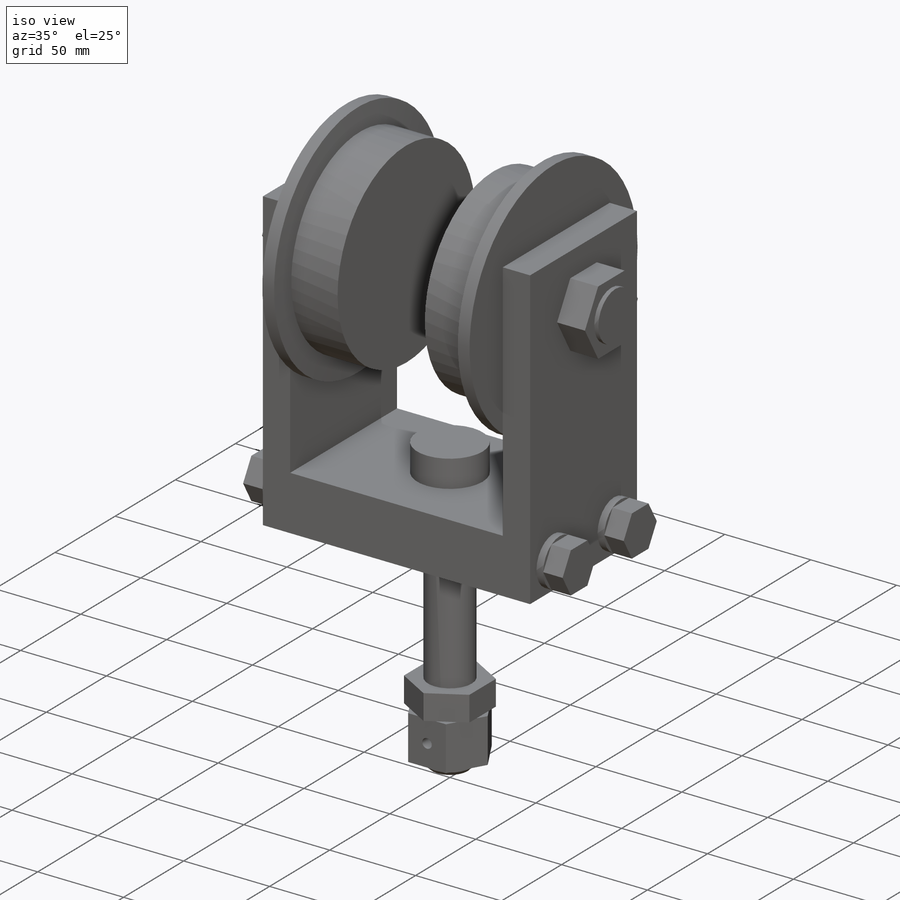
[diagram: iso view]
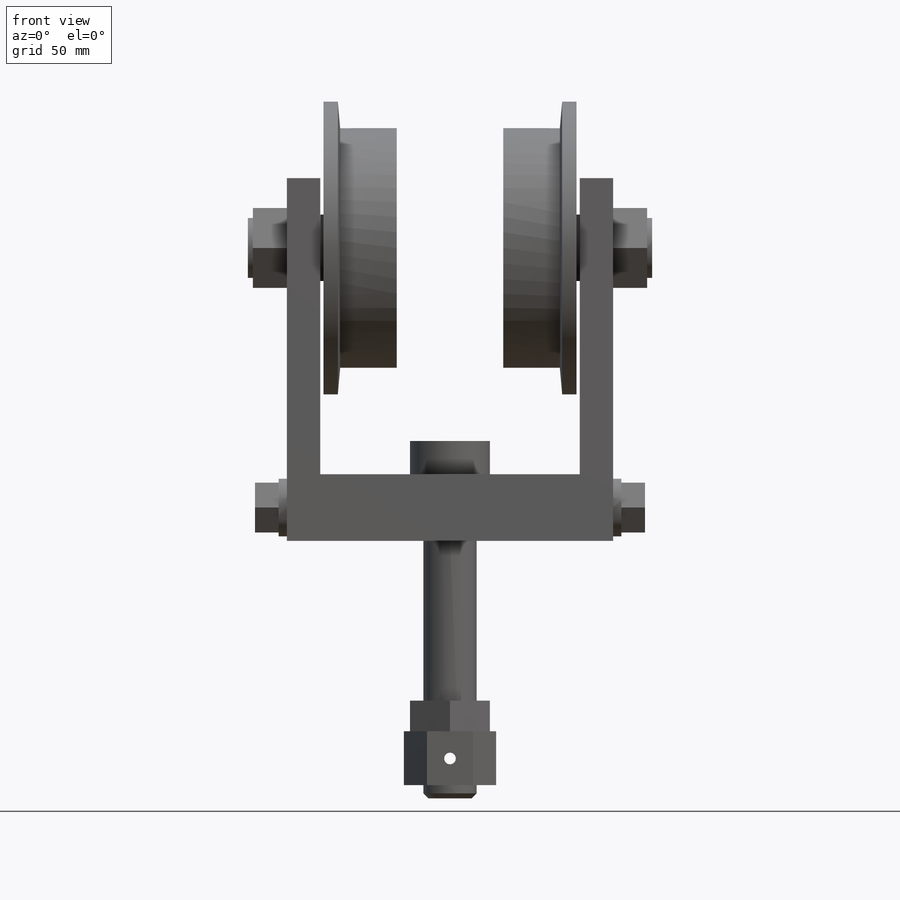
[diagram: front view]
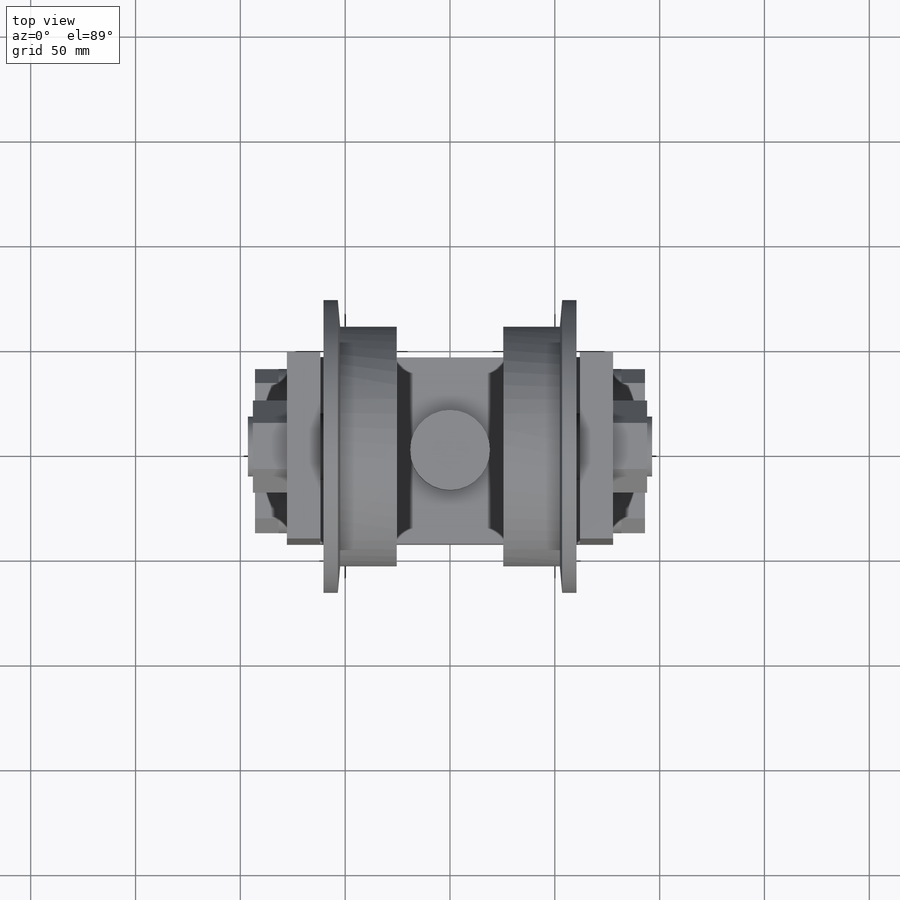
[diagram: top view]
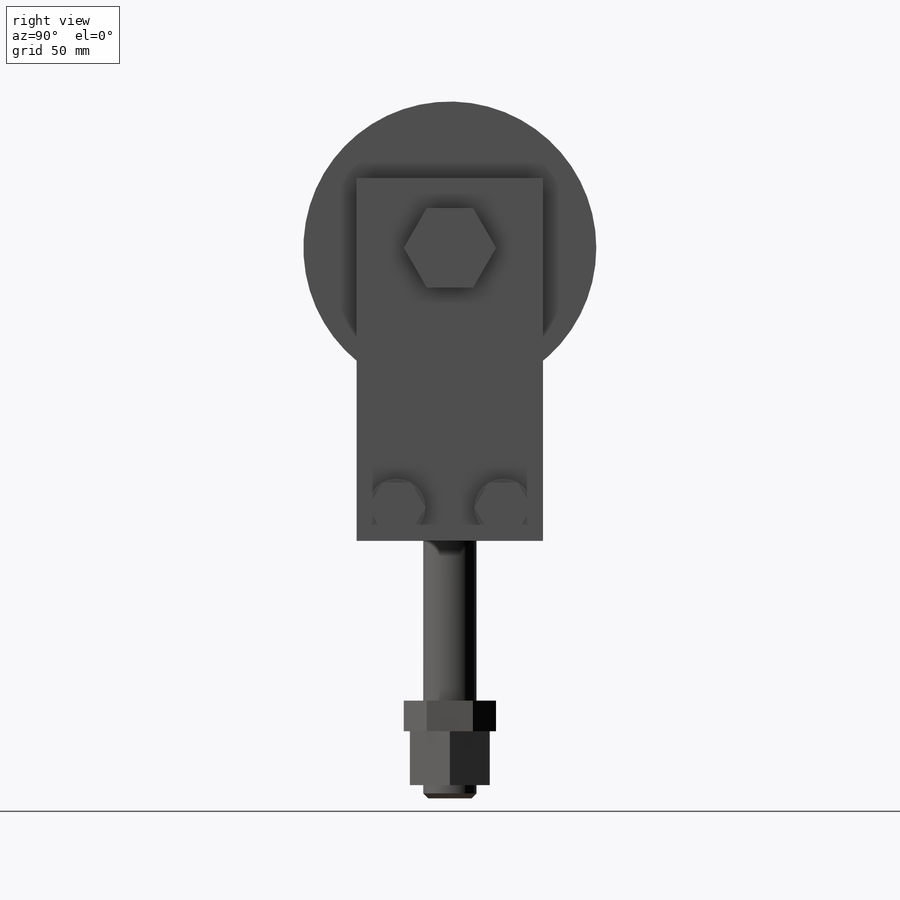
[diagram: right view]
SOLIDWORKS PART (.sldprt)
format: sldprt  version: not decoded by parser v0  size: 533,504 bytes
history: native  units: mm
features: sketch x14, extrude x12, plane x10, mirror x3, material x1, chamfer x1, revolve x1, cut_extrude x1 (+11 scaffold rows collapsed)
feature tree (54):
  scaffold x11  (default folders/planes/origin — collapsed)
  material  "Material <not specified>"
  plane  "Z PLANE"  Offset=0mm
  plane  "YOKE BOTTOM"  Offset=0mm
  plane  "X PLANE"  Offset=0mm
  sketch  "YOKE CROSS SECTION"  dims[D1=31.75mm D2=88.9mm]
  plane  "1/2 YOKE LENGTH (A)"  Offset=61.9125mm
  extrude  "YOKE"  [1 undecoded]
  sketch  "SIDEPLATE PROFILE"  dims[D1=173.0375mm]
  plane  "WHEEL HEIGHT"  Offset=139.7mm
  plane  "SCREW LOCATION X"  Offset=25.4mm
  plane  "SCREW LOCATION Y"  Offset=15.875mm
  extrude  "SIDEPLATE"  Depth=15.875mm
  sketch  "WHEEL PIN NUT PROFILE"  dims[D1=38.1mm]
  extrude  "WHEEL PIN NUT"  Depth=16.2306mm
  sketch  "WHEEL PIN PROJECTION PROFILE"  dims[D1=28.575mm]
  extrude  "WHEEL PIN PROJECTION"  Depth=2.413mm
  sketch  "LOCKNUTS PROFILE"  dims[D1=27.5082mm]
  extrude  "LOCKNUTS"  Depth=3.9624mm
  sketch  "SCREWS PROFILE"  dims[D1=23.8125mm]
  extrude  "SCREWS"  Depth=11.2776mm
  sketch  "PROFILE"  dims[D1=38.1mm]
  extrude  "KING BOLT HEAD"  Depth=15.875mm
  mirror  "Mirror1"
  mirror  "Mirror5"
  plane  "TOP OF NUT"  Offset=76.2mm
  sketch  "DIA."  dims[D1=25.4mm]
  extrude  "KING BOLT"  [1 undecoded]
  sketch  "KING BOLT JAN NUT PROFILE"  dims[D1=38.1mm]
  extrude  "KING BOLT JAM NUT"  Depth=14.605mm
  sketch  "KING BOLT NUT PROFILE"  dims[c1.D1=38.1mm c1.D2=44.45mm c2.D1=0.0mm]
  extrude  "KING BOLT NUT"  Depth=25.7048mm
  sketch  "Sketch5"
  extrude  "EXTENDED KING BOLT"  Depth=6.35mm
  chamfer  "Chamfer1"  Distance=2.38125mm Angle=45deg
  plane  "MOUNTING REF PLANE"  Offset=34.925mm
  sketch  "Sketch7"  dims[c1.D3=88.9mm c1.D1=31.75mm c1.D2=9.525mm c1.D4=15.875mm c1.D5=1.5875mm c1.D6=~6.826394mm c1.D7=69.85mm c1.D8=12.7mm c1.D9=~52.954692mm c2.D1=34.925mm c2.D2=~12.748512mm]
  revolve  "WHEEL"  Angle=360deg
  mirror  "Mirror6"
  sketch  "Sketch8"  dims[D2=5.5372mm D1=12.7mm]
  cut_extrude  "COTTER PIN HOLE"  [1 undecoded]
  sketch  "Sketch9"  dims[D1=50.8mm D2=60.325mm]
  extrude  "SPACER"  Depth=12.7mm
  plane  "TREAD OF TRACK"  Offset=82.55mm
decode coverage: 25 of 32 modeling features carry decoded parameters
note: ~ marks probable driven/reference dimensions
note: 3 parameter values undecoded
summary: no parameter record found for 3 features
note: suppression state not decoded; provenance and decode notes live in map.json
